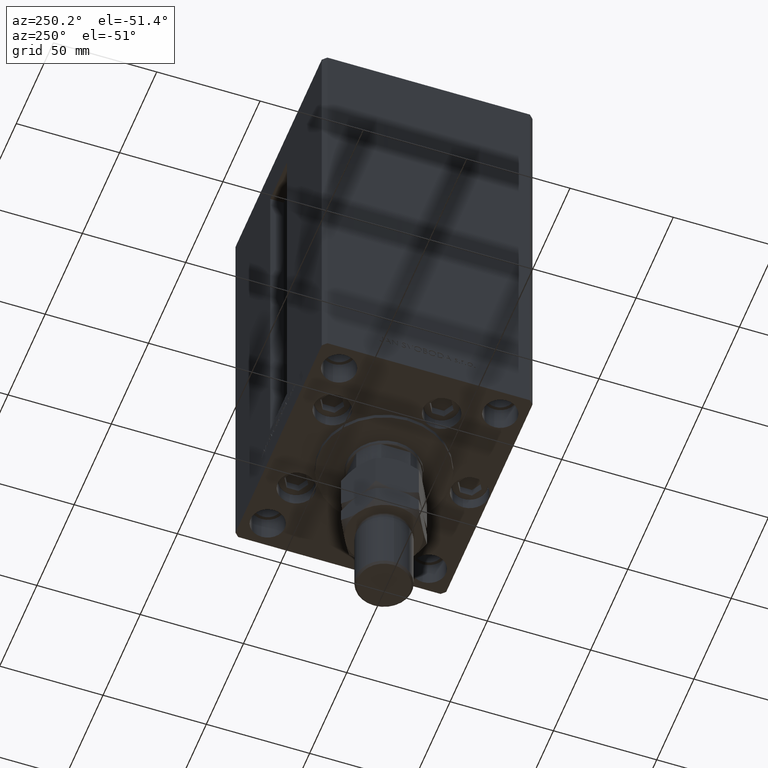
[diagram: clean part render]
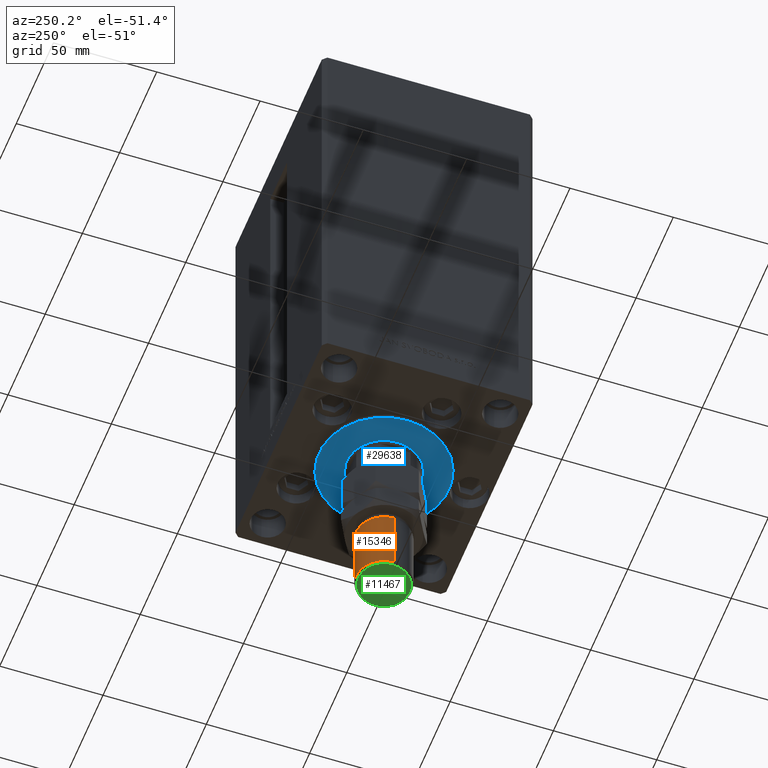
[diagram: same view with three faces highlighted in distinct colors, each labeled with its STEP entity id]
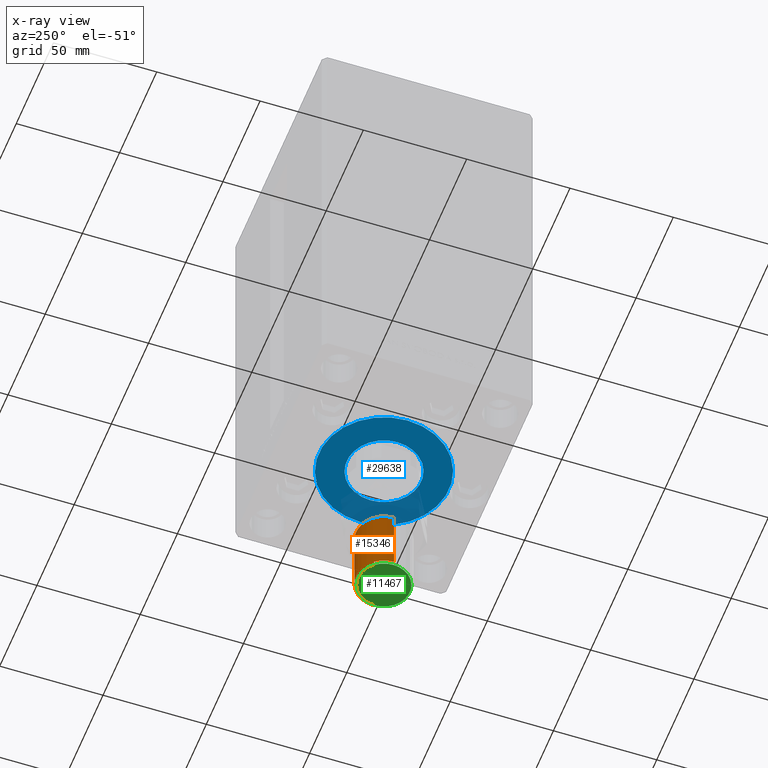
[diagram: x-ray of the same camera — body ghosted, the three highlighted faces saturated]
A machine part, auxiliary view with three faces highlighted in distinct colors.
The next image is the same camera in x-ray (body ghosted, the three faces saturated) — at least one of them is partly hidden behind the body in this view.
Their STEP definitions:

[orange] entity #15346 — the highlighted cylindrical surface (edge-blend (fillet) strip) has radius 13.5 mm, axis along (0, -0, 1).
#1749 = CARTESIAN_POINT ( 'NONE',  ( -13.50000000000000000, 0.000000000000000000, 37.00000000000000000 ) ) ;
#3620 = EDGE_CURVE ( 'NONE', #37136, #46699, #43972, .T. ) ;
#4918 = LINE ( 'NONE', #20096, #32878 ) ;
#5211 = AXIS2_PLACEMENT_3D ( 'NONE', #47327, #36022, #23718 ) ;
#7003 = CARTESIAN_POINT ( 'NONE',  ( 13.50000000000000000, 1.653273178848926867E-15, 70.00000000000000000 ) ) ;
#7531 = EDGE_CURVE ( 'NONE', #23581, #37136, #39080, .T. ) ;
#8087 = CARTESIAN_POINT ( 'NONE',  ( 13.50000000000000000, 1.653273178848926867E-15, 68.99999999999998579 ) ) ;
#8191 = ORIENTED_EDGE ( 'NONE', *, *, #31133, .T. ) ;
#11577 = DIRECTION ( 'NONE',  ( -0.000000000000000000, -0.000000000000000000, -1.000000000000000000 ) ) ;
#12807 = AXIS2_PLACEMENT_3D ( 'NONE', #34348, #18927, #50005 ) ;
#15346 = ADVANCED_FACE ( 'NONE', ( #43667 ), #20049, .T. ) ;
#15812 = EDGE_LOOP ( 'NONE', ( #8191, #35461, #47062, #39789 ) ) ;
#18927 = DIRECTION ( 'NONE',  ( -0.000000000000000000, -0.000000000000000000, 1.000000000000000000 ) ) ;
#19545 = CARTESIAN_POINT ( 'NONE',  ( 0.000000000000000000, 0.000000000000000000, 70.00000000000000000 ) ) ;
#20049 = CYLINDRICAL_SURFACE ( 'NONE', #31974, 13.50000000000000000 ) ;
#20096 = CARTESIAN_POINT ( 'NONE',  ( -13.50000000000000000, 0.000000000000000000, 70.00000000000000000 ) ) ;
#21636 = EDGE_CURVE ( 'NONE', #32341, #46699, #4918, .T. ) ;
#22677 = DIRECTION ( 'NONE',  ( -0.000000000000000000, -0.000000000000000000, -1.000000000000000000 ) ) ;
#23581 = VERTEX_POINT ( 'NONE', #8087 ) ;
#23718 = DIRECTION ( 'NONE',  ( 1.000000000000000000, 0.000000000000000000, 0.000000000000000000 ) ) ;
#27333 = CARTESIAN_POINT ( 'NONE',  ( 13.50000000000000000, 1.653273178848926867E-15, 37.00000000000000000 ) ) ;
#28538 = VECTOR ( 'NONE', #22677, 1000.000000000000000 ) ;
#31133 = EDGE_CURVE ( 'NONE', #32341, #23581, #38038, .T. ) ;
#31974 = AXIS2_PLACEMENT_3D ( 'NONE', #19545, #11577, #35715 ) ;
#32341 = VERTEX_POINT ( 'NONE', #36720 ) ;
#32878 = VECTOR ( 'NONE', #50221, 1000.000000000000000 ) ;
#34348 = CARTESIAN_POINT ( 'NONE',  ( 0.000000000000000000, 0.000000000000000000, 37.00000000000000000 ) ) ;
#35461 = ORIENTED_EDGE ( 'NONE', *, *, #7531, .T. ) ;
#35715 = DIRECTION ( 'NONE',  ( -1.000000000000000000, 0.000000000000000000, 0.000000000000000000 ) ) ;
#36022 = DIRECTION ( 'NONE',  ( 0.000000000000000000, 0.000000000000000000, -1.000000000000000000 ) ) ;
#36720 = CARTESIAN_POINT ( 'NONE',  ( -13.50000000000000000, 0.000000000000000000, 68.99999999999998579 ) ) ;
#37136 = VERTEX_POINT ( 'NONE', #27333 ) ;
#38038 = CIRCLE ( 'NONE', #5211, 13.50000000000000000 ) ;
#39080 = LINE ( 'NONE', #7003, #28538 ) ;
#39789 = ORIENTED_EDGE ( 'NONE', *, *, #21636, .F. ) ;
#43667 = FACE_OUTER_BOUND ( 'NONE', #15812, .T. ) ;
#43972 = CIRCLE ( 'NONE', #12807, 13.50000000000000000 ) ;
#46699 = VERTEX_POINT ( 'NONE', #1749 ) ;
#47062 = ORIENTED_EDGE ( 'NONE', *, *, #3620, .T. ) ;
#47327 = CARTESIAN_POINT ( 'NONE',  ( 0.000000000000000000, 0.000000000000000000, 68.99999999999998579 ) ) ;
#50005 = DIRECTION ( 'NONE',  ( 1.000000000000000000, 0.000000000000000000, 0.000000000000000000 ) ) ;
#50221 = DIRECTION ( 'NONE',  ( -0.000000000000000000, -0.000000000000000000, -1.000000000000000000 ) ) ;

[blue] entity #29638 — the highlighted planar face has unit normal (0, 0, -1).
#2588 = CARTESIAN_POINT ( 'NONE',  ( -31.50000000000000000, -6.938893903907228378E-15, 2.000000000000000000 ) ) ;
#2813 = DIRECTION ( 'NONE',  ( 1.000000000000000000, 0.000000000000000000, -0.000000000000000000 ) ) ;
#3363 = DIRECTION ( 'NONE',  ( 0.000000000000000000, 0.000000000000000000, 1.000000000000000000 ) ) ;
#5547 = DIRECTION ( 'NONE',  ( 0.000000000000000000, 0.000000000000000000, 1.000000000000000000 ) ) ;
#5942 = DIRECTION ( 'NONE',  ( 1.000000000000000000, 0.000000000000000000, 0.000000000000000000 ) ) ;
#5991 = AXIS2_PLACEMENT_3D ( 'NONE', #12253, #5547, #20217 ) ;
#6857 = ORIENTED_EDGE ( 'NONE', *, *, #20362, .T. ) ;
#7234 = CARTESIAN_POINT ( 'NONE',  ( 0.000000000000000000, -6.938893903907228378E-15, 2.000000000000000000 ) ) ;
#9968 = CARTESIAN_POINT ( 'NONE',  ( 31.50000000000000000, -3.081256486593065689E-15, 2.000000000000000000 ) ) ;
#10289 = EDGE_CURVE ( 'NONE', #38100, #37175, #12276, .T. ) ;
#10292 = AXIS2_PLACEMENT_3D ( 'NONE', #7234, #3363, #19044 ) ;
#11976 = ORIENTED_EDGE ( 'NONE', *, *, #26614, .T. ) ;
#12253 = CARTESIAN_POINT ( 'NONE',  ( 0.000000000000000000, -6.938893903907228378E-15, 2.000000000000000000 ) ) ;
#12276 = CIRCLE ( 'NONE', #25408, 18.00000000000000000 ) ;
#14897 = EDGE_LOOP ( 'NONE', ( #6857, #11976 ) ) ;
#17999 = PLANE ( 'NONE',  #30745 ) ;
#18071 = DIRECTION ( 'NONE',  ( 0.000000000000000000, 0.000000000000000000, 1.000000000000000000 ) ) ;
#19044 = DIRECTION ( 'NONE',  ( 1.000000000000000000, 0.000000000000000000, 0.000000000000000000 ) ) ;
#20217 = DIRECTION ( 'NONE',  ( 1.000000000000000000, 0.000000000000000000, 0.000000000000000000 ) ) ;
#20362 = EDGE_CURVE ( 'NONE', #39157, #34942, #49273, .T. ) ;
#20554 = ORIENTED_EDGE ( 'NONE', *, *, #35604, .F. ) ;
#25408 = AXIS2_PLACEMENT_3D ( 'NONE', #49613, #49356, #5942 ) ;
#25524 = CARTESIAN_POINT ( 'NONE',  ( 0.000000000000000000, -6.938893903907228378E-15, 2.000000000000000000 ) ) ;
#25773 = CARTESIAN_POINT ( 'NONE',  ( -18.00000000000000000, -4.734529665441992555E-15, 2.000000000000000000 ) ) ;
#26614 = EDGE_CURVE ( 'NONE', #34942, #39157, #39617, .T. ) ;
#27647 = EDGE_LOOP ( 'NONE', ( #20554, #42925 ) ) ;
#29296 = DIRECTION ( 'NONE',  ( 0.000000000000000000, 0.000000000000000000, 1.000000000000000000 ) ) ;
#29638 = ADVANCED_FACE ( 'NONE', ( #37761, #33911 ), #17999, .T. ) ;
#30745 = AXIS2_PLACEMENT_3D ( 'NONE', #33665, #29296, #2813 ) ;
#33665 = CARTESIAN_POINT ( 'NONE',  ( 0.000000000000000000, -6.938893903907228378E-15, 2.000000000000000000 ) ) ;
#33911 = FACE_OUTER_BOUND ( 'NONE', #14897, .T. ) ;
#34942 = VERTEX_POINT ( 'NONE', #9968 ) ;
#35539 = CARTESIAN_POINT ( 'NONE',  ( 18.00000000000000000, -6.938893903907228378E-15, 2.000000000000000000 ) ) ;
#35604 = EDGE_CURVE ( 'NONE', #37175, #38100, #46359, .T. ) ;
#37175 = VERTEX_POINT ( 'NONE', #35539 ) ;
#37761 = FACE_BOUND ( 'NONE', #27647, .T. ) ;
#38100 = VERTEX_POINT ( 'NONE', #25773 ) ;
#39157 = VERTEX_POINT ( 'NONE', #2588 ) ;
#39617 = CIRCLE ( 'NONE', #5991, 31.50000000000000000 ) ;
#42925 = ORIENTED_EDGE ( 'NONE', *, *, #10289, .F. ) ;
#44515 = DIRECTION ( 'NONE',  ( 1.000000000000000000, 0.000000000000000000, 0.000000000000000000 ) ) ;
#45971 = AXIS2_PLACEMENT_3D ( 'NONE', #25524, #18071, #44515 ) ;
#46359 = CIRCLE ( 'NONE', #10292, 18.00000000000000000 ) ;
#49273 = CIRCLE ( 'NONE', #45971, 31.50000000000000000 ) ;
#49356 = DIRECTION ( 'NONE',  ( 0.000000000000000000, 0.000000000000000000, 1.000000000000000000 ) ) ;
#49613 = CARTESIAN_POINT ( 'NONE',  ( 0.000000000000000000, -6.938893903907228378E-15, 2.000000000000000000 ) ) ;

[green] entity #11467 — the highlighted planar face has unit normal (0, 0, -1).
#7767 = CARTESIAN_POINT ( 'NONE',  ( -12.49999999999999467, 0.000000000000000000, 70.00000000000000000 ) ) ;
#9213 = VERTEX_POINT ( 'NONE', #7767 ) ;
#9731 = DIRECTION ( 'NONE',  ( 0.000000000000000000, 0.000000000000000000, 1.000000000000000000 ) ) ;
#11467 = ADVANCED_FACE ( 'NONE', ( #48611 ), #38071, .T. ) ;
#13422 = DIRECTION ( 'NONE',  ( 1.000000000000000000, 0.000000000000000000, -0.000000000000000000 ) ) ;
#13943 = DIRECTION ( 'NONE',  ( 0.000000000000000000, 0.000000000000000000, 1.000000000000000000 ) ) ;
#15890 = CIRCLE ( 'NONE', #23275, 12.49999999999999467 ) ;
#18359 = DIRECTION ( 'NONE',  ( 1.000000000000000000, 0.000000000000000000, 0.000000000000000000 ) ) ;
#22388 = VERTEX_POINT ( 'NONE', #37323 ) ;
#23275 = AXIS2_PLACEMENT_3D ( 'NONE', #37612, #41208, #18359 ) ;
#27999 = EDGE_CURVE ( 'NONE', #22388, #9213, #15890, .T. ) ;
#30836 = EDGE_CURVE ( 'NONE', #9213, #22388, #42934, .T. ) ;
#34734 = AXIS2_PLACEMENT_3D ( 'NONE', #45177, #9731, #40307 ) ;
#37323 = CARTESIAN_POINT ( 'NONE',  ( 12.49999999999999467, 1.592040838891558898E-15, 70.00000000000000000 ) ) ;
#37612 = CARTESIAN_POINT ( 'NONE',  ( 0.000000000000000000, 0.000000000000000000, 70.00000000000000000 ) ) ;
#38071 = PLANE ( 'NONE',  #41724 ) ;
#40307 = DIRECTION ( 'NONE',  ( 1.000000000000000000, 0.000000000000000000, 0.000000000000000000 ) ) ;
#41162 = CARTESIAN_POINT ( 'NONE',  ( 0.000000000000000000, 0.000000000000000000, 70.00000000000000000 ) ) ;
#41208 = DIRECTION ( 'NONE',  ( 0.000000000000000000, 0.000000000000000000, 1.000000000000000000 ) ) ;
#41724 = AXIS2_PLACEMENT_3D ( 'NONE', #41162, #13943, #13422 ) ;
#42934 = CIRCLE ( 'NONE', #34734, 12.49999999999999467 ) ;
#43208 = EDGE_LOOP ( 'NONE', ( #48405, #45195 ) ) ;
#45177 = CARTESIAN_POINT ( 'NONE',  ( 0.000000000000000000, 0.000000000000000000, 70.00000000000000000 ) ) ;
#45195 = ORIENTED_EDGE ( 'NONE', *, *, #27999, .T. ) ;
#48405 = ORIENTED_EDGE ( 'NONE', *, *, #30836, .T. ) ;
#48611 = FACE_OUTER_BOUND ( 'NONE', #43208, .T. ) ;